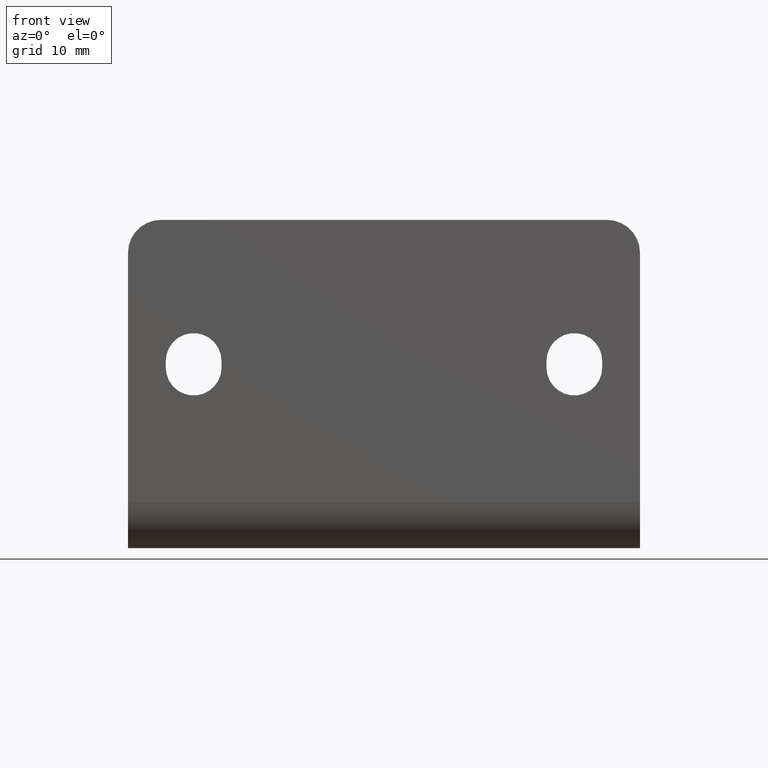
[diagram: clean part render]
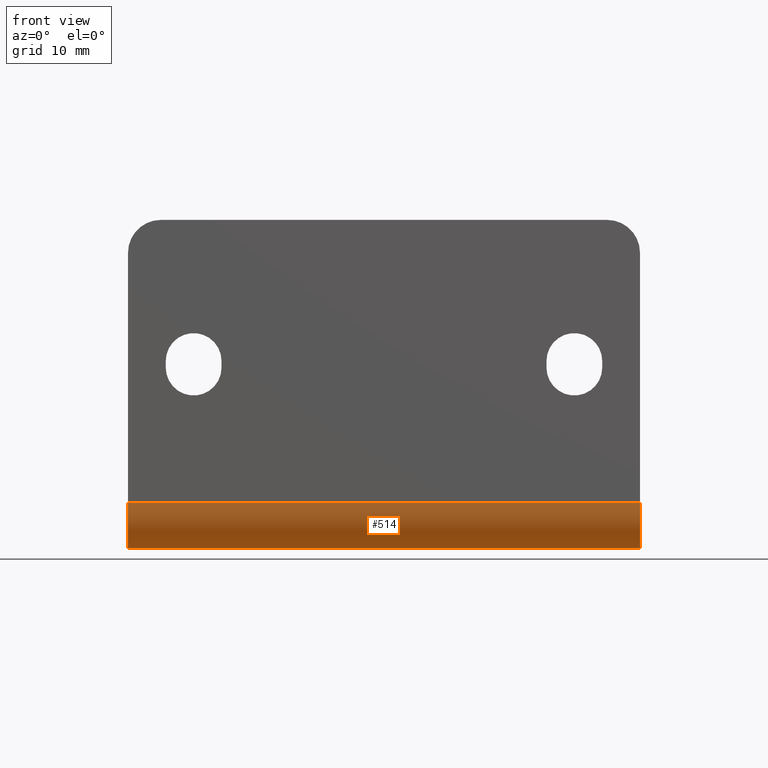
[diagram: same view with one face highlighted and labeled with its STEP entity id]
A machine part, front view. The second image highlights one B-rep face of the part: STEP entity #514.
In plain terms, the highlighted cylindrical surface (partial cylindrical patch) has radius 7 mm, axis along (-1, 0, 0).
Its self-contained STEP definition (entity closure, byte-faithful):
#51=FACE_OUTER_BOUND('',#82,.T.);
#82=EDGE_LOOP('',(#405,#406,#407,#408));
#129=LINE('',#845,#178);
#130=LINE('',#849,#179);
#178=VECTOR('',#687,10.);
#179=VECTOR('',#690,10.);
#212=CIRCLE('',#579,7.);
#213=CIRCLE('',#580,6.99999999999999);
#250=VERTEX_POINT('',#840);
#251=VERTEX_POINT('',#844);
#252=VERTEX_POINT('',#846);
#253=VERTEX_POINT('',#848);
#309=EDGE_CURVE('',#250,#251,#129,.T.);
#310=EDGE_CURVE('',#252,#250,#212,.T.);
#311=EDGE_CURVE('',#253,#252,#130,.T.);
#312=EDGE_CURVE('',#251,#253,#213,.T.);
#405=ORIENTED_EDGE('',*,*,#309,.F.);
#406=ORIENTED_EDGE('',*,*,#310,.F.);
#407=ORIENTED_EDGE('',*,*,#311,.F.);
#408=ORIENTED_EDGE('',*,*,#312,.F.);
#495=CYLINDRICAL_SURFACE('',#578,7.);
#514=ADVANCED_FACE('',(#51),#495,.T.);
#578=AXIS2_PLACEMENT_3D('',#843,#685,#686);
#579=AXIS2_PLACEMENT_3D('',#847,#688,#689);
#580=AXIS2_PLACEMENT_3D('',#850,#691,#692);
#685=DIRECTION('center_axis',(-1.,0.,0.));
#686=DIRECTION('ref_axis',(0.,0.,-1.));
#687=DIRECTION('',(1.,4.2579230508707E-18,2.29514947909257E-32));
#688=DIRECTION('center_axis',(-1.,0.,0.));
#689=DIRECTION('ref_axis',(0.,0.,-1.));
#690=DIRECTION('',(-1.,0.,0.));
#691=DIRECTION('center_axis',(1.,0.,0.));
#692=DIRECTION('ref_axis',(0.,-1.,-5.39251183389362E-15));
#840=CARTESIAN_POINT('',(20.6042546020733,221.400291811824,6.99999999999999));
#843=CARTESIAN_POINT('Origin',(59.6042547020733,228.400291811824,7.));
#844=CARTESIAN_POINT('',(98.6042548020733,221.400291811824,6.99999999999999));
#845=CARTESIAN_POINT('',(59.6042547020733,221.400291811824,6.99999999999996));
#846=CARTESIAN_POINT('',(20.6042546020733,228.400291811824,0.));
#847=CARTESIAN_POINT('Origin',(20.6042546020733,228.400291811824,7.));
#848=CARTESIAN_POINT('',(98.6042548020733,228.400291811824,0.));
#849=CARTESIAN_POINT('',(79.1042547520733,228.400291811824,0.));
#850=CARTESIAN_POINT('Origin',(98.6042548020733,228.400291811824,7.));